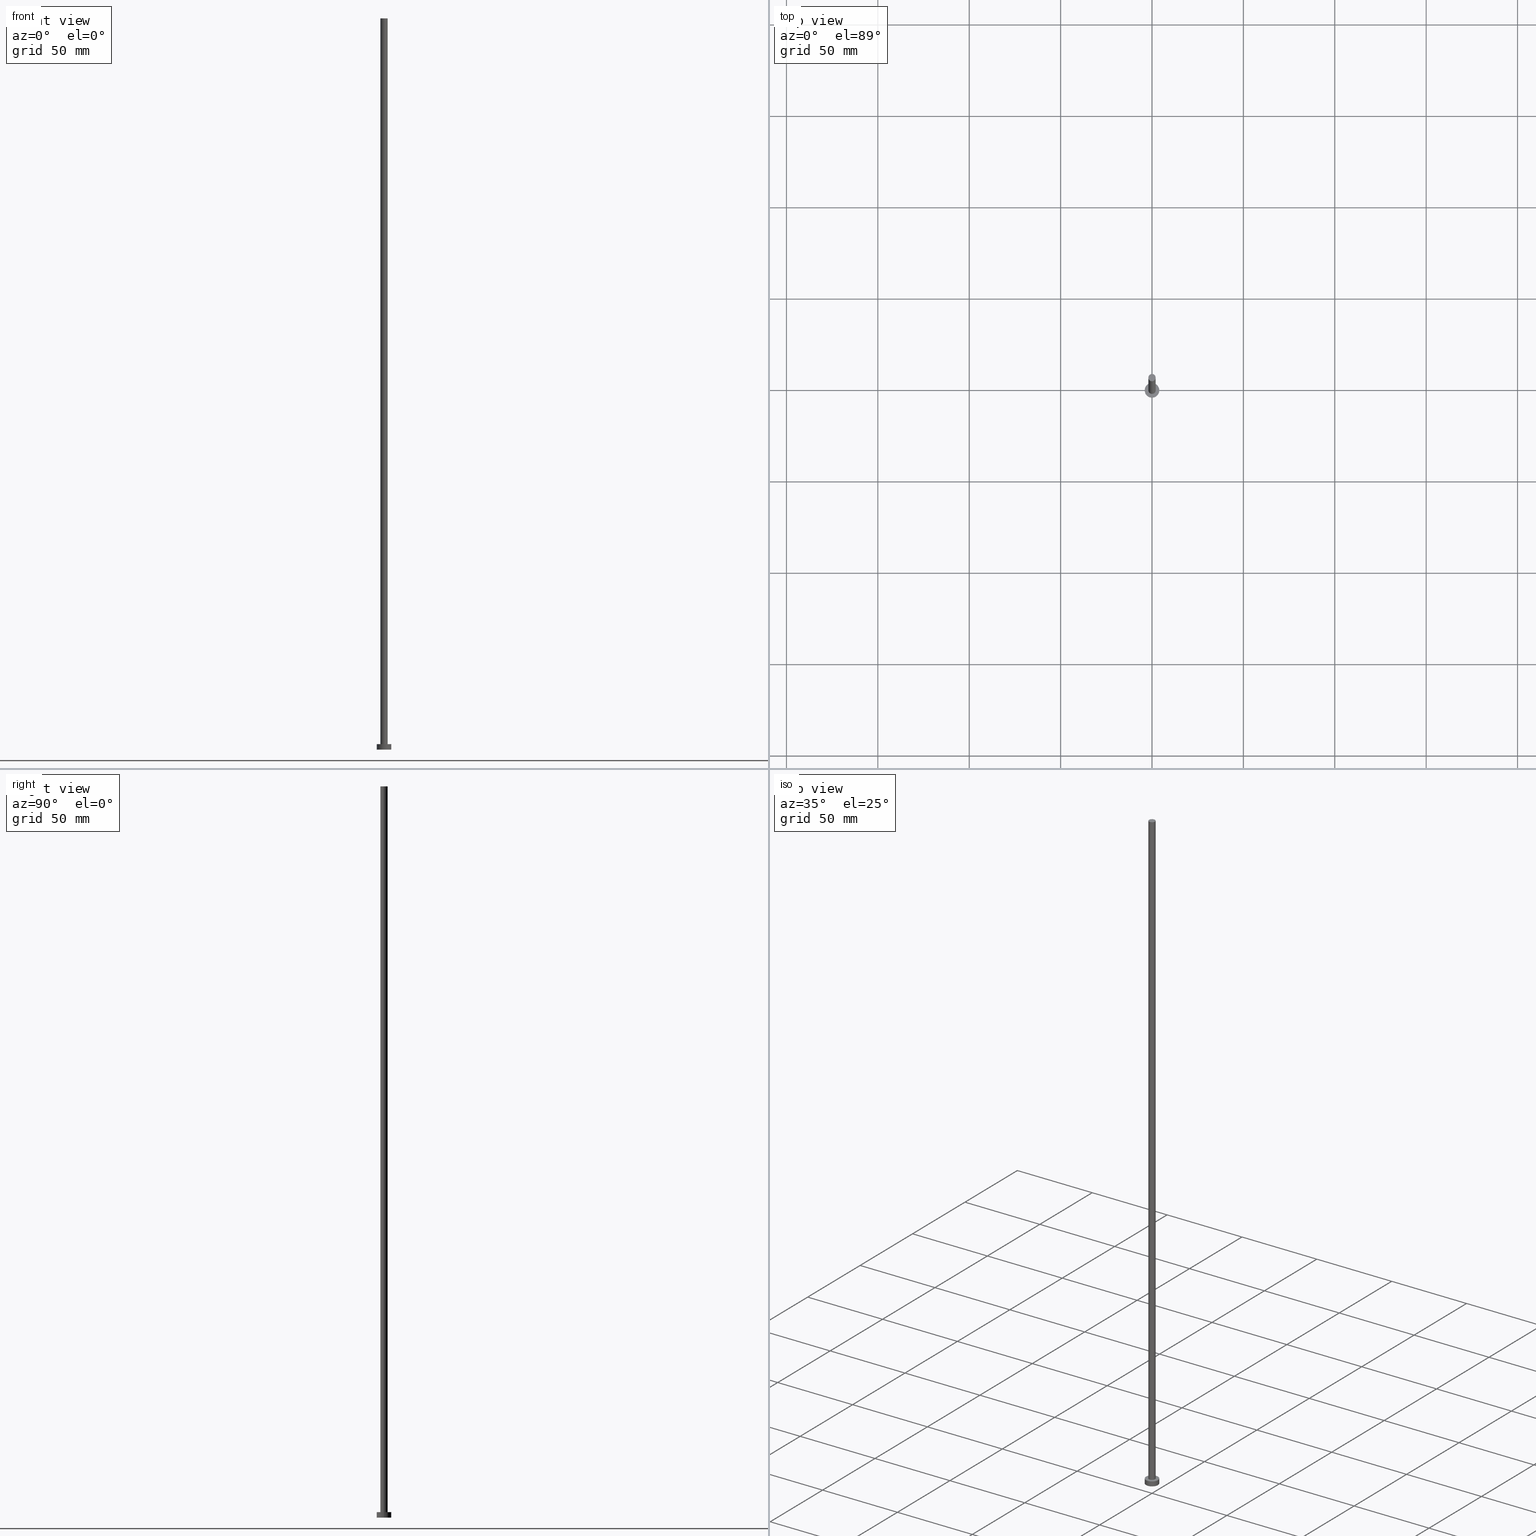
[diagram: canonical four-view strip — front | top / right | iso, engineering-drawing reading convention]
A machine part, canonical four-view strip (front | top / right | iso — engineering-drawing reading convention). The complete STEP part file that produces these views, byte-faithful:
ISO-10303-21;
HEADER;
FILE_DESCRIPTION (( 'STEP AP203' ),
    '1' );
FILE_NAME ('8aec.STEP',
    '2023-02-13T15:07:18',
    ( '' ),
    ( '' ),
    'SwSTEP 2.0',
    'SolidWorks 2019',
    '' );
FILE_SCHEMA (( 'CONFIG_CONTROL_DESIGN' ));
ENDSEC;

DATA;
#1 = CARTESIAN_POINT ( 'NONE',  ( 0.000000000000000000, 0.000000000000000000, 0.000000000000000000 ) ) ;
#2 = DIRECTION ( 'NONE',  ( 0.000000000000000000, 0.000000000000000000, 1.000000000000000000 ) ) ;
#3 = APPROVAL_DATE_TIME ( #213, #132 ) ;
#4 = ADVANCED_FACE ( 'NONE', ( #204 ), #28, .T. ) ;
#5 = CIRCLE ( 'NONE', #42, 4.000000000000000000 ) ;
#6 = DIRECTION ( 'NONE',  ( 1.000000000000000000, 0.000000000000000000, 0.000000000000000000 ) ) ;
#7 = LINE ( 'NONE', #207, #130 ) ;
#8 = LINE ( 'NONE', #45, #93 ) ;
#9 = ORIENTED_EDGE ( 'NONE', *, *, #175, .T. ) ;
#10 = EDGE_CURVE ( 'NONE', #143, #68, #190, .T. ) ;
#11 = ORIENTED_EDGE ( 'NONE', *, *, #10, .F. ) ;
#12 = CARTESIAN_POINT ( 'NONE',  ( 0.000000000000000000, 0.000000000000000000, 0.000000000000000000 ) ) ;
#13 = PERSON_AND_ORGANIZATION ( #222, #193 ) ;
#14 = AXIS2_PLACEMENT_3D ( 'NONE', #233, #32, #137 ) ;
#15 = AXIS2_PLACEMENT_3D ( 'NONE', #1, #156, #230 ) ;
#16 = CARTESIAN_POINT ( 'NONE',  ( 0.000000000000000000, 0.000000000000000000, 400.0000000000000000 ) ) ;
#17 = APPLICATION_PROTOCOL_DEFINITION ( 'international standard', 'config_control_design', 1994, #243 ) ;
#18 = PERSON_AND_ORGANIZATION ( #222, #193 ) ;
#19 = FACE_BOUND ( 'NONE', #187, .T. ) ;
#20 = DATE_TIME_ROLE ( 'classification_date' ) ;
#21 = CARTESIAN_POINT ( 'NONE',  ( 0.000000000000000000, 0.000000000000000000, 0.000000000000000000 ) ) ;
#22 = DIRECTION ( 'NONE',  ( 1.000000000000000000, 0.000000000000000000, 0.000000000000000000 ) ) ;
#23 = APPROVAL_ROLE ( '' ) ;
#24 = VERTEX_POINT ( 'NONE', #74 ) ;
#25 = AXIS2_PLACEMENT_3D ( 'NONE', #16, #199, #6 ) ;
#26 = CALENDAR_DATE ( 2023, 13, 2 ) ;
#27 = ORIENTED_EDGE ( 'NONE', *, *, #140, .T. ) ;
#28 = PLANE ( 'NONE',  #238 ) ;
#29 = AXIS2_PLACEMENT_3D ( 'NONE', #153, #35, #217 ) ;
#30 =( NAMED_UNIT ( * ) PLANE_ANGLE_UNIT ( ) SI_UNIT ( $, .RADIAN. ) );
#31 = LOCAL_TIME ( 16, 7, 18.00000000000000000, #94 ) ;
#32 = DIRECTION ( 'NONE',  ( -0.000000000000000000, -0.000000000000000000, -1.000000000000000000 ) ) ;
#33 = DIRECTION ( 'NONE',  ( -0.000000000000000000, -0.000000000000000000, -1.000000000000000000 ) ) ;
#34 = CC_DESIGN_DATE_AND_TIME_ASSIGNMENT ( #215, #119, ( #165 ) ) ;
#35 = DIRECTION ( 'NONE',  ( 0.000000000000000000, 0.000000000000000000, 1.000000000000000000 ) ) ;
#36 =( LENGTH_UNIT ( ) NAMED_UNIT ( * ) SI_UNIT ( .MILLI., .METRE. ) );
#37 = DIRECTION ( 'NONE',  ( 0.000000000000000000, 0.000000000000000000, 1.000000000000000000 ) ) ;
#38 = APPROVAL_DATE_TIME ( #56, #125 ) ;
#39 = CARTESIAN_POINT ( 'NONE',  ( 2.000000000000000000, 2.449293598294706414E-16, 3.000000000000000000 ) ) ;
#40 = EDGE_CURVE ( 'NONE', #61, #163, #86, .T. ) ;
#41 = ORIENTED_EDGE ( 'NONE', *, *, #159, .T. ) ;
#42 = AXIS2_PLACEMENT_3D ( 'NONE', #76, #235, #136 ) ;
#43 = LOCAL_TIME ( 16, 7, 18.00000000000000000, #176 ) ;
#44 = ADVANCED_FACE ( 'NONE', ( #55 ), #118, .T. ) ;
#45 = CARTESIAN_POINT ( 'NONE',  ( -4.000000000000000000, 0.000000000000000000, 3.000000000000000000 ) ) ;
#46 = APPLICATION_CONTEXT ( 'configuration controlled 3d designs of mechanical parts and assemblies' ) ;
#47 = ORIENTED_EDGE ( 'NONE', *, *, #95, .T. ) ;
#48 = CC_DESIGN_PERSON_AND_ORGANIZATION_ASSIGNMENT ( #53, #135, ( #165 ) ) ;
#49 = ORIENTED_EDGE ( 'NONE', *, *, #144, .F. ) ;
#50 =( NAMED_UNIT ( * ) SI_UNIT ( $, .STERADIAN. ) SOLID_ANGLE_UNIT ( ) );
#51 = CYLINDRICAL_SURFACE ( 'NONE', #58, 4.000000000000000000 ) ;
#52 = CARTESIAN_POINT ( 'NONE',  ( -4.000000000000000000, 0.000000000000000000, 0.000000000000000000 ) ) ;
#53 = PERSON_AND_ORGANIZATION ( #222, #193 ) ;
#54 = DIRECTION ( 'NONE',  ( -1.000000000000000000, 0.000000000000000000, 0.000000000000000000 ) ) ;
#55 = FACE_OUTER_BOUND ( 'NONE', #182, .T. ) ;
#56 = DATE_AND_TIME ( #60, #84 ) ;
#57 = DIRECTION ( 'NONE',  ( 1.000000000000000000, 0.000000000000000000, 0.000000000000000000 ) ) ;
#58 = AXIS2_PLACEMENT_3D ( 'NONE', #231, #33, #122 ) ;
#59 = PRODUCT_RELATED_PRODUCT_CATEGORY ( 'detail', '', ( #101 ) ) ;
#60 = CALENDAR_DATE ( 2023, 13, 2 ) ;
#61 = VERTEX_POINT ( 'NONE', #39 ) ;
#62 = AXIS2_PLACEMENT_3D ( 'NONE', #134, #37, #150 ) ;
#63 = ADVANCED_FACE ( 'NONE', ( #19, #216 ), #194, .T. ) ;
#64 = DIRECTION ( 'NONE',  ( -1.000000000000000000, 0.000000000000000000, 0.000000000000000000 ) ) ;
#65 = ORIENTED_EDGE ( 'NONE', *, *, #171, .F. ) ;
#66 = ORIENTED_EDGE ( 'NONE', *, *, #175, .F. ) ;
#67 = VECTOR ( 'NONE', #91, 1000.000000000000000 ) ;
#68 = VERTEX_POINT ( 'NONE', #174 ) ;
#69 = ORIENTED_EDGE ( 'NONE', *, *, #251, .T. ) ;
#70 = CARTESIAN_POINT ( 'NONE',  ( -2.000000000000000000, 0.000000000000000000, 400.0000000000000000 ) ) ;
#71 = CC_DESIGN_DATE_AND_TIME_ASSIGNMENT ( #181, #20, ( #178 ) ) ;
#72 = CC_DESIGN_APPROVAL ( #132, ( #165 ) ) ;
#73 = CARTESIAN_POINT ( 'NONE',  ( 0.000000000000000000, 0.000000000000000000, 400.0000000000000000 ) ) ;
#74 = CARTESIAN_POINT ( 'NONE',  ( 2.000000000000000000, 2.449293598294706414E-16, 400.0000000000000000 ) ) ;
#75 = APPROVAL_ROLE ( '' ) ;
#76 = CARTESIAN_POINT ( 'NONE',  ( 0.000000000000000000, 0.000000000000000000, 3.000000000000000000 ) ) ;
#77 = PERSON_AND_ORGANIZATION_ROLE ( 'design_owner' ) ;
#78 = DIRECTION ( 'NONE',  ( -0.000000000000000000, -0.000000000000000000, -1.000000000000000000 ) ) ;
#79 = ADVANCED_BREP_SHAPE_REPRESENTATION ( '8aec', ( #97, #155 ), #142 ) ;
#80 = SHAPE_DEFINITION_REPRESENTATION ( #202, #79 ) ;
#81 = COORDINATED_UNIVERSAL_TIME_OFFSET ( 1, 0, .AHEAD. ) ;
#82 = PERSON_AND_ORGANIZATION_ROLE ( 'design_supplier' ) ;
#83 = CC_DESIGN_PERSON_AND_ORGANIZATION_ASSIGNMENT ( #123, #82, ( #241 ) ) ;
#84 = LOCAL_TIME ( 16, 7, 18.00000000000000000, #104 ) ;
#85 = UNCERTAINTY_MEASURE_WITH_UNIT (LENGTH_MEASURE( 1.000000000000000082E-05 ), #36, 'distance_accuracy_value', 'NONE');
#86 = CIRCLE ( 'NONE', #29, 2.000000000000000000 ) ;
#87 = CYLINDRICAL_SURFACE ( 'NONE', #184, 4.000000000000000000 ) ;
#88 = ORIENTED_EDGE ( 'NONE', *, *, #161, .F. ) ;
#89 = EDGE_LOOP ( 'NONE', ( #11, #209, #41, #242 ) ) ;
#90 = ADVANCED_FACE ( 'NONE', ( #236 ), #51, .T. ) ;
#91 = DIRECTION ( 'NONE',  ( -0.000000000000000000, -0.000000000000000000, -1.000000000000000000 ) ) ;
#92 = CIRCLE ( 'NONE', #164, 2.000000000000000000 ) ;
#93 = VECTOR ( 'NONE', #249, 1000.000000000000000 ) ;
#94 = COORDINATED_UNIVERSAL_TIME_OFFSET ( 1, 0, .AHEAD. ) ;
#95 = EDGE_CURVE ( 'NONE', #68, #245, #206, .T. ) ;
#96 = CARTESIAN_POINT ( 'NONE',  ( 4.000000000000000000, 4.898587196589412829E-16, 3.000000000000000000 ) ) ;
#97 = MANIFOLD_SOLID_BREP ( 'P�idat vysunut�m3', #246 ) ;
#98 = PERSON_AND_ORGANIZATION ( #222, #193 ) ;
#99 = CALENDAR_DATE ( 2023, 13, 2 ) ;
#100 = SECURITY_CLASSIFICATION_LEVEL ( 'unclassified' ) ;
#101 = PRODUCT ( '8aec', '8aec', '', ( #154 ) ) ;
#102 = ADVANCED_FACE ( 'NONE', ( #113 ), #197, .F. ) ;
#103 = COORDINATED_UNIVERSAL_TIME_OFFSET ( 1, 0, .AHEAD. ) ;
#104 = COORDINATED_UNIVERSAL_TIME_OFFSET ( 1, 0, .AHEAD. ) ;
#105 = ORIENTED_EDGE ( 'NONE', *, *, #160, .T. ) ;
#106 = AXIS2_PLACEMENT_3D ( 'NONE', #21, #169, #253 ) ;
#107 = EDGE_LOOP ( 'NONE', ( #141, #146, #47, #225 ) ) ;
#108 = LOCAL_TIME ( 16, 7, 18.00000000000000000, #103 ) ;
#109 = VECTOR ( 'NONE', #78, 1000.000000000000000 ) ;
#110 = CC_DESIGN_APPROVAL ( #148, ( #178 ) ) ;
#111 = CC_DESIGN_PERSON_AND_ORGANIZATION_ASSIGNMENT ( #221, #179, ( #241 ) ) ;
#112 = ORIENTED_EDGE ( 'NONE', *, *, #161, .T. ) ;
#113 = FACE_OUTER_BOUND ( 'NONE', #208, .T. ) ;
#114 = DIRECTION ( 'NONE',  ( -0.000000000000000000, -0.000000000000000000, -1.000000000000000000 ) ) ;
#115 = DIRECTION ( 'NONE',  ( 0.000000000000000000, 0.000000000000000000, 1.000000000000000000 ) ) ;
#116 = AXIS2_PLACEMENT_3D ( 'NONE', #73, #115, #192 ) ;
#117 = CARTESIAN_POINT ( 'NONE',  ( 0.000000000000000000, 0.000000000000000000, 0.000000000000000000 ) ) ;
#118 = CYLINDRICAL_SURFACE ( 'NONE', #14, 2.000000000000000000 ) ;
#119 = DATE_TIME_ROLE ( 'creation_date' ) ;
#120 = FACE_OUTER_BOUND ( 'NONE', #250, .T. ) ;
#121 = PERSON_AND_ORGANIZATION ( #222, #193 ) ;
#122 = DIRECTION ( 'NONE',  ( -1.000000000000000000, 0.000000000000000000, 0.000000000000000000 ) ) ;
#123 = PERSON_AND_ORGANIZATION ( #222, #193 ) ;
#124 = CC_DESIGN_PERSON_AND_ORGANIZATION_ASSIGNMENT ( #121, #195, ( #178 ) ) ;
#125 = APPROVAL ( #173, 'NEUR�EN�' ) ;
#126 = CIRCLE ( 'NONE', #15, 4.000000000000000000 ) ;
#127 = ORIENTED_EDGE ( 'NONE', *, *, #129, .F. ) ;
#128 = DIRECTION ( 'NONE',  ( 1.000000000000000000, 0.000000000000000000, 0.000000000000000000 ) ) ;
#129 = EDGE_CURVE ( 'NONE', #24, #201, #224, .T. ) ;
#130 = VECTOR ( 'NONE', #145, 1000.000000000000000 ) ;
#131 = ORIENTED_EDGE ( 'NONE', *, *, #140, .F. ) ;
#132 = APPROVAL ( #196, 'NEUR�EN�' ) ;
#133 = CARTESIAN_POINT ( 'NONE',  ( -2.000000000000000000, 0.000000000000000000, 3.000000000000000000 ) ) ;
#134 = CARTESIAN_POINT ( 'NONE',  ( 0.000000000000000000, 0.000000000000000000, 3.000000000000000000 ) ) ;
#135 = PERSON_AND_ORGANIZATION_ROLE ( 'creator' ) ;
#136 = DIRECTION ( 'NONE',  ( 1.000000000000000000, 0.000000000000000000, 0.000000000000000000 ) ) ;
#137 = DIRECTION ( 'NONE',  ( -1.000000000000000000, 0.000000000000000000, 0.000000000000000000 ) ) ;
#138 = CARTESIAN_POINT ( 'NONE',  ( 0.000000000000000000, 0.000000000000000000, 3.000000000000000000 ) ) ;
#139 = APPROVAL_ROLE ( '' ) ;
#140 = EDGE_CURVE ( 'NONE', #201, #24, #205, .T. ) ;
#141 = ORIENTED_EDGE ( 'NONE', *, *, #251, .F. ) ;
#142 =( GEOMETRIC_REPRESENTATION_CONTEXT ( 3 ) GLOBAL_UNCERTAINTY_ASSIGNED_CONTEXT ( ( #85 ) ) GLOBAL_UNIT_ASSIGNED_CONTEXT ( ( #36, #30, #50 ) ) REPRESENTATION_CONTEXT ( 'NONE', 'WORKASPACE' ) );
#143 = VERTEX_POINT ( 'NONE', #239 ) ;
#144 = EDGE_CURVE ( 'NONE', #163, #61, #92, .T. ) ;
#145 = DIRECTION ( 'NONE',  ( -0.000000000000000000, -0.000000000000000000, -1.000000000000000000 ) ) ;
#146 = ORIENTED_EDGE ( 'NONE', *, *, #10, .T. ) ;
#147 = APPROVAL_PERSON_ORGANIZATION ( #18, #125, #139 ) ;
#148 = APPROVAL ( #158, 'NEUR�EN�' ) ;
#149 = FACE_OUTER_BOUND ( 'NONE', #107, .T. ) ;
#150 = DIRECTION ( 'NONE',  ( 1.000000000000000000, 0.000000000000000000, -0.000000000000000000 ) ) ;
#151 = CC_DESIGN_APPROVAL ( #125, ( #241 ) ) ;
#152 = ADVANCED_FACE ( 'NONE', ( #149 ), #87, .T. ) ;
#153 = CARTESIAN_POINT ( 'NONE',  ( 0.000000000000000000, 0.000000000000000000, 3.000000000000000000 ) ) ;
#154 = MECHANICAL_CONTEXT ( 'NONE', #243, 'mechanical' ) ;
#155 = AXIS2_PLACEMENT_3D ( 'NONE', #117, #172, #22 ) ;
#156 = DIRECTION ( 'NONE',  ( 0.000000000000000000, 0.000000000000000000, 1.000000000000000000 ) ) ;
#157 = DIRECTION ( 'NONE',  ( 1.000000000000000000, 0.000000000000000000, -0.000000000000000000 ) ) ;
#158 = APPROVAL_STATUS ( 'not_yet_approved' ) ;
#159 = EDGE_CURVE ( 'NONE', #162, #245, #8, .T. ) ;
#160 = EDGE_CURVE ( 'NONE', #162, #143, #234, .T. ) ;
#161 = EDGE_CURVE ( 'NONE', #201, #163, #7, .T. ) ;
#162 = VERTEX_POINT ( 'NONE', #191 ) ;
#163 = VERTEX_POINT ( 'NONE', #133 ) ;
#164 = AXIS2_PLACEMENT_3D ( 'NONE', #138, #183, #220 ) ;
#165 = PRODUCT_DEFINITION ( 'NEZN�M�', '', #241, #227 ) ;
#166 = ORIENTED_EDGE ( 'NONE', *, *, #144, .T. ) ;
#167 = DIRECTION ( 'NONE',  ( -0.000000000000000000, -0.000000000000000000, -1.000000000000000000 ) ) ;
#168 = LINE ( 'NONE', #252, #67 ) ;
#169 = DIRECTION ( 'NONE',  ( 0.000000000000000000, 0.000000000000000000, 1.000000000000000000 ) ) ;
#170 = APPROVAL_PERSON_ORGANIZATION ( #98, #132, #75 ) ;
#171 = EDGE_CURVE ( 'NONE', #245, #68, #126, .T. ) ;
#172 = DIRECTION ( 'NONE',  ( 0.000000000000000000, 0.000000000000000000, 1.000000000000000000 ) ) ;
#173 = APPROVAL_STATUS ( 'not_yet_approved' ) ;
#174 = CARTESIAN_POINT ( 'NONE',  ( 4.000000000000000000, 4.898587196589412829E-16, 0.000000000000000000 ) ) ;
#175 = EDGE_CURVE ( 'NONE', #24, #61, #168, .T. ) ;
#176 = COORDINATED_UNIVERSAL_TIME_OFFSET ( 1, 0, .AHEAD. ) ;
#177 = CALENDAR_DATE ( 2023, 13, 2 ) ;
#178 = SECURITY_CLASSIFICATION ( '', '', #100 ) ;
#179 = PERSON_AND_ORGANIZATION_ROLE ( 'creator' ) ;
#180 = APPLICATION_PROTOCOL_DEFINITION ( 'international standard', 'config_control_design', 1994, #46 ) ;
#181 = DATE_AND_TIME ( #26, #108 ) ;
#182 = EDGE_LOOP ( 'NONE', ( #127, #9, #229, #88 ) ) ;
#183 = DIRECTION ( 'NONE',  ( 0.000000000000000000, 0.000000000000000000, 1.000000000000000000 ) ) ;
#184 = AXIS2_PLACEMENT_3D ( 'NONE', #186, #167, #64 ) ;
#185 = LOCAL_TIME ( 16, 7, 18.00000000000000000, #81 ) ;
#186 = CARTESIAN_POINT ( 'NONE',  ( 0.000000000000000000, 0.000000000000000000, 3.000000000000000000 ) ) ;
#187 = EDGE_LOOP ( 'NONE', ( #49, #188 ) ) ;
#188 = ORIENTED_EDGE ( 'NONE', *, *, #40, .F. ) ;
#189 = CC_DESIGN_SECURITY_CLASSIFICATION ( #178, ( #241 ) ) ;
#190 = LINE ( 'NONE', #96, #109 ) ;
#191 = CARTESIAN_POINT ( 'NONE',  ( -4.000000000000000000, 0.000000000000000000, 3.000000000000000000 ) ) ;
#192 = DIRECTION ( 'NONE',  ( 1.000000000000000000, 0.000000000000000000, 0.000000000000000000 ) ) ;
#193 = ORGANIZATION ( 'NEUR�EN�', 'NEUR�EN�', '' ) ;
#194 = PLANE ( 'NONE',  #62 ) ;
#195 = PERSON_AND_ORGANIZATION_ROLE ( 'classification_officer' ) ;
#196 = APPROVAL_STATUS ( 'not_yet_approved' ) ;
#197 = PLANE ( 'NONE',  #106 ) ;
#198 = DATE_AND_TIME ( #99, #43 ) ;
#199 = DIRECTION ( 'NONE',  ( 0.000000000000000000, 0.000000000000000000, 1.000000000000000000 ) ) ;
#200 = PERSON_AND_ORGANIZATION ( #222, #193 ) ;
#201 = VERTEX_POINT ( 'NONE', #70 ) ;
#202 = PRODUCT_DEFINITION_SHAPE ( 'NONE', 'NONE',  #165 ) ;
#203 = ADVANCED_FACE ( 'NONE', ( #120 ), #255, .T. ) ;
#204 = FACE_OUTER_BOUND ( 'NONE', #226, .T. ) ;
#205 = CIRCLE ( 'NONE', #25, 2.000000000000000000 ) ;
#206 = CIRCLE ( 'NONE', #218, 4.000000000000000000 ) ;
#207 = CARTESIAN_POINT ( 'NONE',  ( -2.000000000000000000, 0.000000000000000000, 400.0000000000000000 ) ) ;
#208 = EDGE_LOOP ( 'NONE', ( #65, #223 ) ) ;
#209 = ORIENTED_EDGE ( 'NONE', *, *, #160, .F. ) ;
#210 = ORIENTED_EDGE ( 'NONE', *, *, #129, .T. ) ;
#211 = CARTESIAN_POINT ( 'NONE',  ( 0.000000000000000000, 0.000000000000000000, 400.0000000000000000 ) ) ;
#212 = CARTESIAN_POINT ( 'NONE',  ( 0.000000000000000000, 0.000000000000000000, 400.0000000000000000 ) ) ;
#213 = DATE_AND_TIME ( #177, #31 ) ;
#214 = AXIS2_PLACEMENT_3D ( 'NONE', #212, #114, #54 ) ;
#215 = DATE_AND_TIME ( #254, #185 ) ;
#216 = FACE_OUTER_BOUND ( 'NONE', #248, .T. ) ;
#217 = DIRECTION ( 'NONE',  ( 1.000000000000000000, 0.000000000000000000, 0.000000000000000000 ) ) ;
#218 = AXIS2_PLACEMENT_3D ( 'NONE', #12, #2, #57 ) ;
#219 = CC_DESIGN_PERSON_AND_ORGANIZATION_ASSIGNMENT ( #13, #77, ( #101 ) ) ;
#220 = DIRECTION ( 'NONE',  ( 1.000000000000000000, 0.000000000000000000, 0.000000000000000000 ) ) ;
#221 = PERSON_AND_ORGANIZATION ( #222, #193 ) ;
#222 = PERSON ( 'NEUR�EN�', 'NEUR�EN�', 'NEUR�EN�', ('NEUR�EN�'), ('NEUR�EN�'), ('NEUR�EN�') ) ;
#223 = ORIENTED_EDGE ( 'NONE', *, *, #95, .F. ) ;
#224 = CIRCLE ( 'NONE', #116, 2.000000000000000000 ) ;
#225 = ORIENTED_EDGE ( 'NONE', *, *, #159, .F. ) ;
#226 = EDGE_LOOP ( 'NONE', ( #27, #210 ) ) ;
#227 = DESIGN_CONTEXT ( 'detailed design', #46, 'design' ) ;
#228 = CARTESIAN_POINT ( 'NONE',  ( 0.000000000000000000, 0.000000000000000000, 3.000000000000000000 ) ) ;
#229 = ORIENTED_EDGE ( 'NONE', *, *, #40, .T. ) ;
#230 = DIRECTION ( 'NONE',  ( 1.000000000000000000, 0.000000000000000000, 0.000000000000000000 ) ) ;
#231 = CARTESIAN_POINT ( 'NONE',  ( 0.000000000000000000, 0.000000000000000000, 3.000000000000000000 ) ) ;
#232 = DIRECTION ( 'NONE',  ( 0.000000000000000000, 0.000000000000000000, 1.000000000000000000 ) ) ;
#233 = CARTESIAN_POINT ( 'NONE',  ( 0.000000000000000000, 0.000000000000000000, 400.0000000000000000 ) ) ;
#234 = CIRCLE ( 'NONE', #240, 4.000000000000000000 ) ;
#235 = DIRECTION ( 'NONE',  ( 0.000000000000000000, 0.000000000000000000, 1.000000000000000000 ) ) ;
#236 = FACE_OUTER_BOUND ( 'NONE', #89, .T. ) ;
#237 = APPROVAL_DATE_TIME ( #198, #148 ) ;
#238 = AXIS2_PLACEMENT_3D ( 'NONE', #211, #232, #157 ) ;
#239 = CARTESIAN_POINT ( 'NONE',  ( 4.000000000000000000, 4.898587196589412829E-16, 3.000000000000000000 ) ) ;
#240 = AXIS2_PLACEMENT_3D ( 'NONE', #228, #244, #128 ) ;
#241 = PRODUCT_DEFINITION_FORMATION_WITH_SPECIFIED_SOURCE ( 'LIBOVOLN�', '', #101, .NOT_KNOWN. ) ;
#242 = ORIENTED_EDGE ( 'NONE', *, *, #171, .T. ) ;
#243 = APPLICATION_CONTEXT ( 'configuration controlled 3d designs of mechanical parts and assemblies' ) ;
#244 = DIRECTION ( 'NONE',  ( 0.000000000000000000, 0.000000000000000000, 1.000000000000000000 ) ) ;
#245 = VERTEX_POINT ( 'NONE', #52 ) ;
#246 = CLOSED_SHELL ( 'NONE', ( #44, #152, #90, #63, #102, #203, #4 ) ) ;
#247 = APPROVAL_PERSON_ORGANIZATION ( #200, #148, #23 ) ;
#248 = EDGE_LOOP ( 'NONE', ( #105, #69 ) ) ;
#249 = DIRECTION ( 'NONE',  ( -0.000000000000000000, -0.000000000000000000, -1.000000000000000000 ) ) ;
#250 = EDGE_LOOP ( 'NONE', ( #66, #131, #112, #166 ) ) ;
#251 = EDGE_CURVE ( 'NONE', #143, #162, #5, .T. ) ;
#252 = CARTESIAN_POINT ( 'NONE',  ( 2.000000000000000000, 2.449293598294706414E-16, 400.0000000000000000 ) ) ;
#253 = DIRECTION ( 'NONE',  ( 1.000000000000000000, 0.000000000000000000, -0.000000000000000000 ) ) ;
#254 = CALENDAR_DATE ( 2023, 13, 2 ) ;
#255 = CYLINDRICAL_SURFACE ( 'NONE', #214, 2.000000000000000000 ) ;
ENDSEC;
END-ISO-10303-21;
